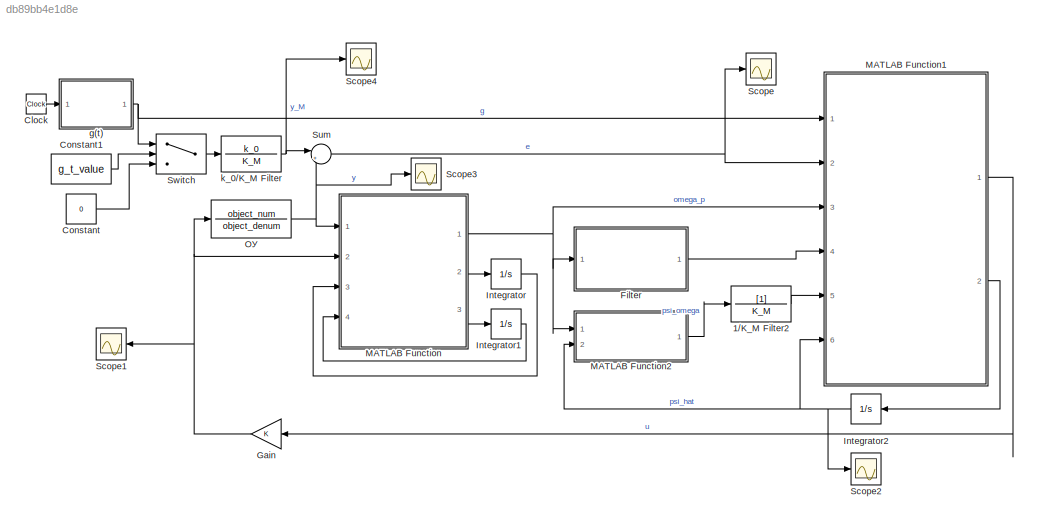
MODEL slx_db89bb4e1d8e
KIND model
CONFIG AbsTol = auto
CONFIG EnableMultiTasking = off
CONFIG FixedStep = auto
CONFIG MaxStep = auto
CONFIG MinStep = auto
CONFIG RelTol = 1e-3
CONFIG SampleTimeConstraint = Unconstrained
CONFIG SolverName = VariableStepAuto
CONFIG StartTime = 0.0
CONFIG StopTime = 20
BLOCK [TransferFcn] 1//K_M Filter2
  Denominator = K_M
BLOCK [Clock] Clock
BLOCK [Constant] Constant
  Value = 0
BLOCK [Constant] Constant1
  Value = g_t_value
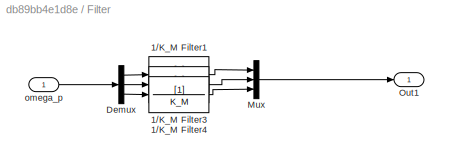
BLOCK [SubSystem] Filter
  Ports = [1, 1]
  RequestExecContextInheritance = off
BLOCK [TransferFcn] Filter/1//K_M Filter1
  Denominator = K_M
BLOCK [TransferFcn] Filter/1//K_M Filter3
  Denominator = K_M
BLOCK [TransferFcn] Filter/1//K_M Filter4
  Denominator = K_M
BLOCK [Demux] Filter/Demux
  Outputs = 3
  Ports = [1, 3]
BLOCK [Mux] Filter/Mux
  DisplayOption = bar
  Inputs = 3
  Ports = [3, 1]
BLOCK [Outport] Filter/Out1
BLOCK [Inport] Filter/omega_p
BLOCK [Gain] Gain
  NameLocation = top
BLOCK [Integrator] Integrator
  InitialCondition = nu1
  Ports = [1, 1]
BLOCK [Integrator] Integrator1
  InitialCondition = nu2
  Ports = [1, 1]
BLOCK [Integrator] Integrator2
  InitialCondition = psi_hat_init_conds
  Ports = [1, 1]
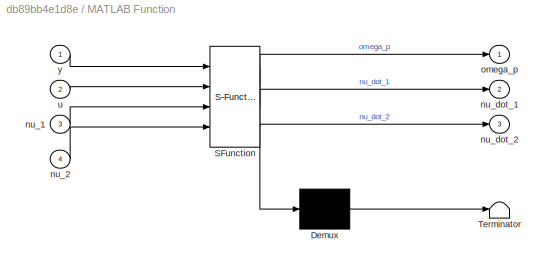
BLOCK [SubSystem] MATLAB Function
  ErrorFcn = Stateflow.Translate.translate
  PermitHierarchicalResolution = ExplicitOnly
  Ports = [4, 3]
  RequestExecContextInheritance = off
  SFBlockType = MATLAB Function
  TreatAsAtomicUnit = on
BLOCK [Demux] MATLAB Function/ Demux 
  Outputs = 1
  Ports = [1, 1]
BLOCK [S-Function] MATLAB Function/ SFunction 
  EnableBusSupport = on
  FunctionName = sf_sfun
  Parameters = Lambda
  PortCounts = [4 4]
  Ports = [4, 4]
  SFcnIsStateOwnerBlock = off
  SFunctionDeploymentMode = off
  Tag = Stateflow S-Function 1
BLOCK [Terminator] MATLAB Function/ Terminator 
BLOCK [Inport] MATLAB Function/nu_1
  Port = 3
BLOCK [Inport] MATLAB Function/nu_2
  Port = 4
BLOCK [Outport] MATLAB Function/nu_dot_1
  Port = 2
BLOCK [Outport] MATLAB Function/nu_dot_2
  Port = 3
BLOCK [Outport] MATLAB Function/omega_p
BLOCK [Inport] MATLAB Function/u
  Port = 2
BLOCK [Inport] MATLAB Function/y
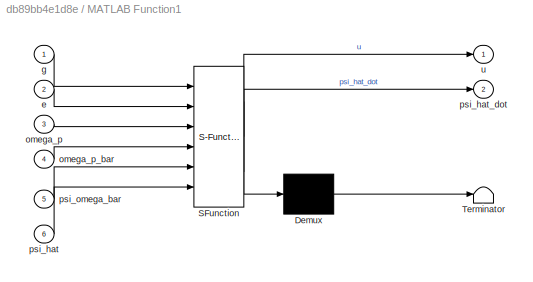
BLOCK [SubSystem] MATLAB Function1
  ErrorFcn = Stateflow.Translate.translate
  PermitHierarchicalResolution = ExplicitOnly
  Ports = [6, 2]
  RequestExecContextInheritance = off
  SFBlockType = MATLAB Function
  TreatAsAtomicUnit = on
BLOCK [Demux] MATLAB Function1/ Demux 
  Outputs = 1
  Ports = [1, 1]
BLOCK [S-Function] MATLAB Function1/ SFunction 
  EnableBusSupport = on
  FunctionName = sf_sfun
  Parameters = b_0,gamma,k_0
  PortCounts = [6 3]
  Ports = [6, 3]
  SFcnIsStateOwnerBlock = off
  SFunctionDeploymentMode = off
  Tag = Stateflow S-Function 3
BLOCK [Terminator] MATLAB Function1/ Terminator 
BLOCK [Inport] MATLAB Function1/e
  Port = 2
BLOCK [Inport] MATLAB Function1/g
BLOCK [Inport] MATLAB Function1/omega_p
  Port = 3
BLOCK [Inport] MATLAB Function1/omega_p_bar
  Port = 4
BLOCK [Inport] MATLAB Function1/psi_hat
  Port = 6
BLOCK [Outport] MATLAB Function1/psi_hat_dot
  Port = 2
BLOCK [Inport] MATLAB Function1/psi_omega_bar
  Port = 5
BLOCK [Outport] MATLAB Function1/u
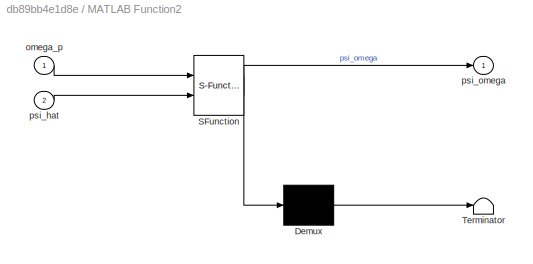
BLOCK [SubSystem] MATLAB Function2
  ErrorFcn = Stateflow.Translate.translate
  PermitHierarchicalResolution = ExplicitOnly
  Ports = [2, 1]
  RequestExecContextInheritance = off
  SFBlockType = MATLAB Function
  TreatAsAtomicUnit = on
BLOCK [Demux] MATLAB Function2/ Demux 
  Outputs = 1
  Ports = [1, 1]
BLOCK [S-Function] MATLAB Function2/ SFunction 
  EnableBusSupport = on
  FunctionName = sf_sfun
  PortCounts = [2 2]
  Ports = [2, 2]
  SFcnIsStateOwnerBlock = off
  SFunctionDeploymentMode = off
  Tag = Stateflow S-Function 4
BLOCK [Terminator] MATLAB Function2/ Terminator 
BLOCK [Inport] MATLAB Function2/omega_p
BLOCK [Inport] MATLAB Function2/psi_hat
  Port = 2
BLOCK [Outport] MATLAB Function2/psi_omega
BLOCK [Scope] Scope
  Floating = off
  NumInputPorts = 1
  Ports = [1]
  ScopeSpecificationString = Simulink.scopes.TimeScopeBlockCfg('CurrentConfiguration', extmgr.ConfigurationSet(extmgr.Configuration('Core','General UI',true),extmgr.Configuration('Core','Source UI',true),extmgr.Configuration('Sources','WiredSimulink',true),extmgr.Configuration('Visuals','Time Domain',true,'SerializedDisplays',{struct('MinYLimReal','-34239.4636','MaxYLimReal','4749.50225','YLabelReal','','MinYLimMag','   0.000...<+1345ch>
BLOCK [Scope] Scope1
  Floating = off
  NameLocation = top
  NumInputPorts = 1
  Ports = [1]
  ScopeSpecificationString = Simulink.scopes.TimeScopeBlockCfg('CurrentConfiguration', extmgr.ConfigurationSet(extmgr.Configuration('Core','General UI',true),extmgr.Configuration('Core','Source UI',true),extmgr.Configuration('Sources','WiredSimulink',true,'DataLoggingVariableName','ScopeData1'),extmgr.Configuration('Visuals','Time Domain',true,'SerializedDisplays',{struct('MinYLimReal','-12635.58771','MaxYLimReal','55270.6231...<+1466ch>
BLOCK [Scope] Scope2
  Floating = off
  NumInputPorts = 1
  Ports = [1]
  ScopeSpecificationString = Simulink.scopes.TimeScopeBlockCfg('CurrentConfiguration', extmgr.ConfigurationSet(extmgr.Configuration('Core','General UI',true),extmgr.Configuration('Core','Source UI',true),extmgr.Configuration('Sources','WiredSimulink',true,'DataLoggingVariableName','ScopeData2'),extmgr.Configuration('Visuals','Time Domain',true,'SerializedDisplays',{struct('MinYLimReal','-118.96704','MaxYLimReal','140.26368','...<+1406ch>
BLOCK [Scope] Scope3
  Floating = off
  NumInputPorts = 1
  Ports = [1]
  ScopeSpecificationString = Simulink.scopes.TimeScopeBlockCfg('CurrentConfiguration', extmgr.ConfigurationSet(extmgr.Configuration('Core','General UI',true),extmgr.Configuration('Core','Source UI',true),extmgr.Configuration('Sources','WiredSimulink',true,'DataLoggingVariableName','ScopeData3'),extmgr.Configuration('Visuals','Time Domain',true,'SerializedDisplays',{struct('MinYLimReal','-1.00534','MaxYLimReal','0.73901','YLab...<+1404ch>
BLOCK [Scope] Scope4
  Floating = off
  NumInputPorts = 1
  Ports = [1]
  ScopeSpecificationString = Simulink.scopes.TimeScopeBlockCfg('CurrentConfiguration', extmgr.ConfigurationSet(extmgr.Configuration('Core','General UI',true),extmgr.Configuration('Core','Source UI',true),extmgr.Configuration('Sources','WiredSimulink',true,'DataLoggingVariableName','ScopeData4'),extmgr.Configuration('Visuals','Time Domain',true,'SerializedDisplays',{struct('MinYLimReal','-1.00000','MaxYLimReal','1.00000','YLab...<+1387ch>
BLOCK [Sum] Sum
  Inputs = |+-
  Ports = [2, 1]
BLOCK [Switch] Switch
  Criteria = u2 > Threshold
  InputSameDT = off
  SaturateOnIntegerOverflow = off
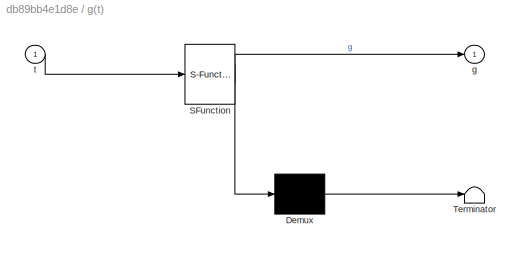
BLOCK [SubSystem] g(t)
  ErrorFcn = Stateflow.Translate.translate
  PermitHierarchicalResolution = ExplicitOnly
  Ports = [1, 1]
  RequestExecContextInheritance = off
  SFBlockType = MATLAB Function
  TreatAsAtomicUnit = on
BLOCK [Demux] g(t)/ Demux 
  Outputs = 1
  Ports = [1, 1]
BLOCK [S-Function] g(t)/ SFunction 
  EnableBusSupport = on
  FunctionName = sf_sfun
  PortCounts = [1 2]
  Ports = [1, 2]
  SFcnIsStateOwnerBlock = off
  SFunctionDeploymentMode = off
  Tag = Stateflow S-Function 2
BLOCK [Terminator] g(t)/ Terminator 
BLOCK [Outport] g(t)/g
BLOCK [Inport] g(t)/t
BLOCK [TransferFcn] k_0//K_M Filter
  Denominator = K_M
  Numerator = k_0
BLOCK [TransferFcn] ОУ
  Denominator = object_denum
  Numerator = object_num
LINE 1//K_M Filter2:1 -> MATLAB Function1:5
LINE Clock:1 -> g(t):1
LINE Constant1:1 -> Switch:2
LINE Constant:1 -> Switch:3
LINE Filter/1//K_M Filter1:1 -> Filter/Mux:1
LINE Filter/1//K_M Filter3:1 -> Filter/Mux:2
LINE Filter/1//K_M Filter4:1 -> Filter/Mux:3
LINE Filter/Demux:1 -> Filter/1//K_M Filter1:1
LINE Filter/Demux:2 -> Filter/1//K_M Filter3:1
LINE Filter/Demux:3 -> Filter/1//K_M Filter4:1
LINE Filter/Mux:1 -> Filter/Out1:1
LINE Filter/omega_p:1 -> Filter/Demux:1
LINE Filter:1 -> MATLAB Function1:4
NET Gain:1 -> MATLAB Function:2, Scope1:1, ОУ:1
LINE Integrator1:1 -> MATLAB Function:4
NET Integrator2:1 -> MATLAB Function1:6, MATLAB Function2:2, Scope2:1
LINE Integrator:1 -> MATLAB Function:3
LINE MATLAB Function1:1 -> Gain:1
LINE MATLAB Function1:2 -> Integrator2:1
LINE MATLAB Function2:1 -> 1//K_M Filter2:1
NET MATLAB Function:1 -> Filter:1, MATLAB Function1:3, MATLAB Function2:1
LINE MATLAB Function:2 -> Integrator:1
LINE MATLAB Function:3 -> Integrator1:1
NET Sum:1 -> MATLAB Function1:2, Scope:1
LINE Switch:1 -> k_0//K_M Filter:1
NET g(t):1 -> MATLAB Function1:1, Switch:1
NET k_0//K_M Filter:1 -> Scope4:1, Sum:1
NET ОУ:1 -> MATLAB Function:1, Scope3:1, Sum:2
note: NET lines group one-source signal fan-out (src -> all destinations, sorted); 1:1 wires keep LINE
CHART MATLAB Function states=1 transitions=1
  STATE_LABEL 'eML_blk_kernel()'
  STATE_LABEL "SCRIPT:\nfunction [omega_p, nu_dot_1, nu_dot_2] = fcn(y, u, nu_1, nu_2, Lambda)\n\nnu_dot_1 = Lambda*nu_1 + u;\nnu_dot_2 = Lambda*nu_2 + y;\nomega = [nu_1', nu_2', y]';\nomega_p = -omega;"
CHART g(t) states=1 transitions=1
  STATE_LABEL 'eML_blk_kernel()'
  STATE_LABEL 'SCRIPT:\nfunction g = fcn(t)\n\ng = 2*sign(sin(0.4*t));\n'
CHART MATLAB Function1 states=1 transitions=1
  STATE_LABEL 'eML_blk_kernel()'
  STATE_LABEL "SCRIPT:\nfunction [u,psi_hat_dot] = fcn(g,e,omega_p,omega_p_bar, psi_omega_bar, gamma, k_0, b_0, psi_hat)\n\ne_hat = e - psi_hat'*omega_p_bar + psi_omega_bar;\npsi_hat_dot = gamma*omega_p_bar*e_hat/(1+omega_p_bar'*omega_p_bar);\nu = (psi_hat'*omega_p+k_0*g)/b_0;"
CHART MATLAB Function2 states=1 transitions=1
  STATE_LABEL 'eML_blk_kernel()'
  STATE_LABEL "SCRIPT:\nfunction psi_omega = fcn(omega_p, psi_hat)\n psi_omega = psi_hat'*omega_p;\n"
CHART  states=0 transitions=0
CHART  states=0 transitions=0
CHART  states=0 transitions=0
CHART  states=0 transitions=0
